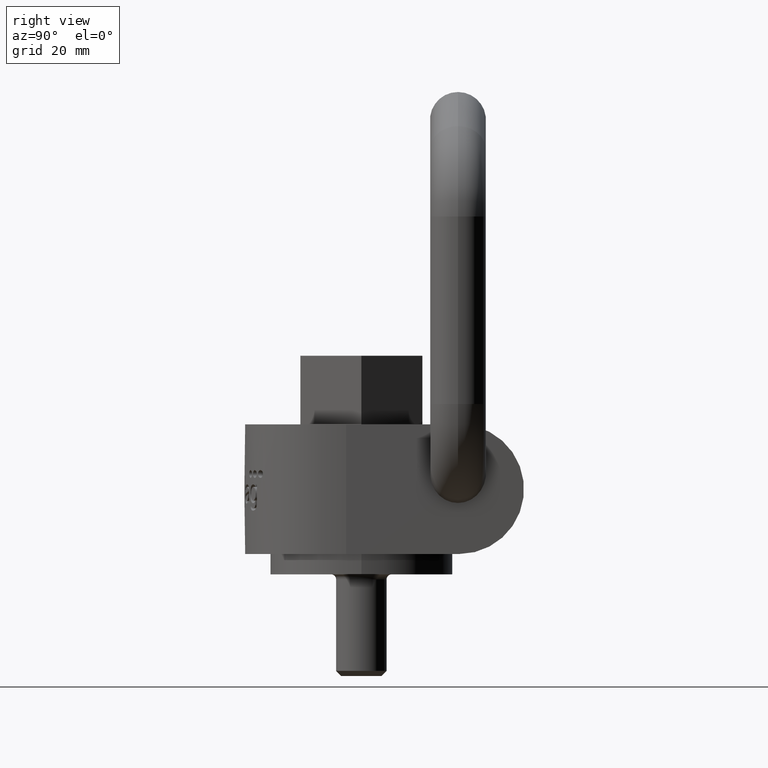
[diagram: clean part render]
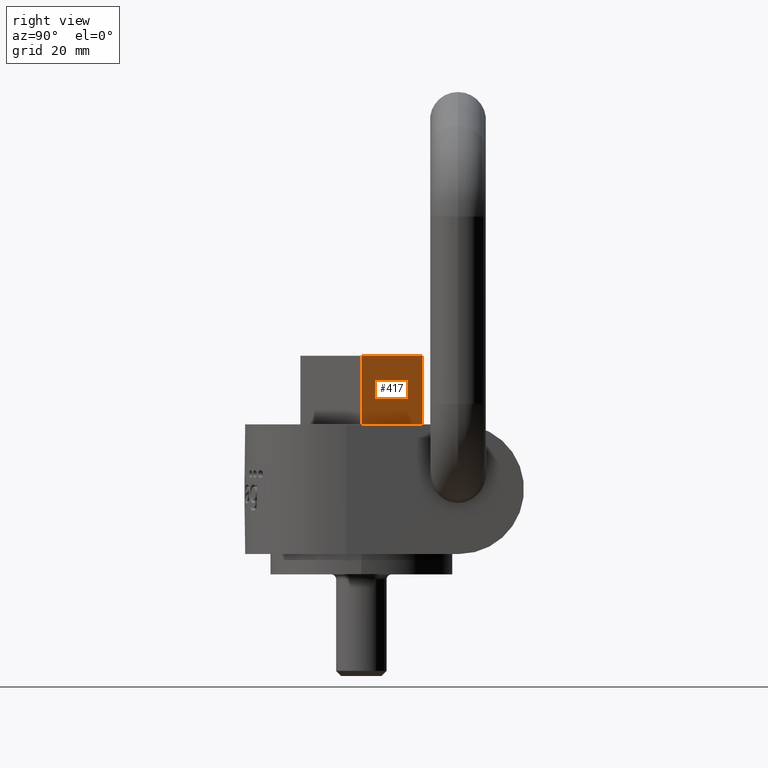
[diagram: same view with one face highlighted and labeled with its STEP entity id]
A machine part, right view. The second image highlights one B-rep face of the part: STEP entity #417.
In plain terms, the highlighted planar face has unit normal (-0.866, -0.5, 0).
Its self-contained STEP definition (entity closure, byte-faithful):
#250=FACE_OUTER_BOUND('',#648,.T.);
#355=PLANE('',#2463);
#417=ADVANCED_FACE('',(#250),#355,.F.);
#648=EDGE_LOOP('',(#1236,#1237,#1238,#1239));
#802=LINE('',#3828,#928);
#810=LINE('',#3844,#936);
#812=LINE('',#3848,#938);
#813=LINE('',#3850,#939);
#928=VECTOR('',#2651,1.);
#936=VECTOR('',#2665,1.);
#938=VECTOR('',#2669,1.);
#939=VECTOR('',#2670,1.);
#1236=ORIENTED_EDGE('',*,*,#2025,.T.);
#1237=ORIENTED_EDGE('',*,*,#2035,.F.);
#1238=ORIENTED_EDGE('',*,*,#2036,.F.);
#1239=ORIENTED_EDGE('',*,*,#2033,.T.);
#1811=VERTEX_POINT('',#3827);
#1812=VERTEX_POINT('',#3829);
#1817=VERTEX_POINT('',#3845);
#1818=VERTEX_POINT('',#3849);
#2025=EDGE_CURVE('',#1812,#1811,#802,.T.);
#2033=EDGE_CURVE('',#1817,#1812,#810,.T.);
#2035=EDGE_CURVE('',#1818,#1811,#812,.T.);
#2036=EDGE_CURVE('',#1817,#1818,#813,.T.);
#2463=AXIS2_PLACEMENT_3D('',#3851,#2671,#2672);
#2651=DIRECTION('',(-0.5,0.866025403784439,-2.50385766456193E-16));
#2665=DIRECTION('',(0.,0.,-1.));
#2669=DIRECTION('',(0.,0.,-1.));
#2670=DIRECTION('',(-0.5,0.866025403784439,-2.50385766456193E-16));
#2671=DIRECTION('',(-0.866025403784439,-0.5,0.));
#2672=DIRECTION('',(0.5,-0.866025403784439,0.));
#3827=CARTESIAN_POINT('',(6.92820323027552,12.,25.5));
#3828=CARTESIAN_POINT('',(13.856406460551,-1.06581410364015E-14,25.5));
#3829=CARTESIAN_POINT('',(13.856406460551,-1.21430643318377E-14,25.5));
#3844=CARTESIAN_POINT('',(13.856406460551,-1.21430643318377E-14,39.));
#3845=CARTESIAN_POINT('',(13.856406460551,-1.21430643318377E-14,39.));
#3848=CARTESIAN_POINT('',(6.92820323027552,12.,39.));
#3849=CARTESIAN_POINT('',(6.92820323027552,12.,39.));
#3850=CARTESIAN_POINT('',(13.856406460551,-1.06581410364015E-14,39.));
#3851=CARTESIAN_POINT('',(13.856406460551,-1.06581410364015E-14,39.));